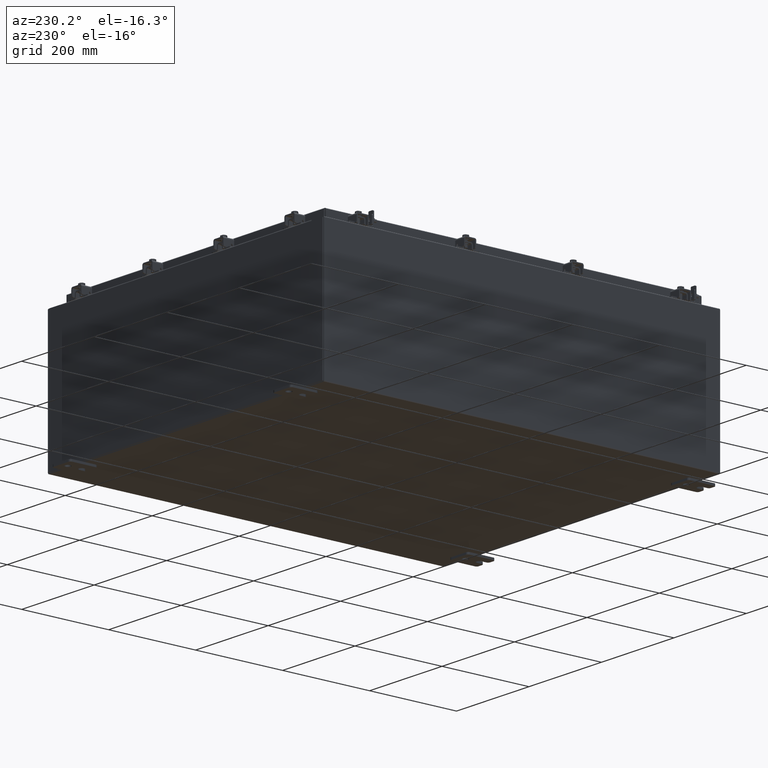
[diagram: clean part render]
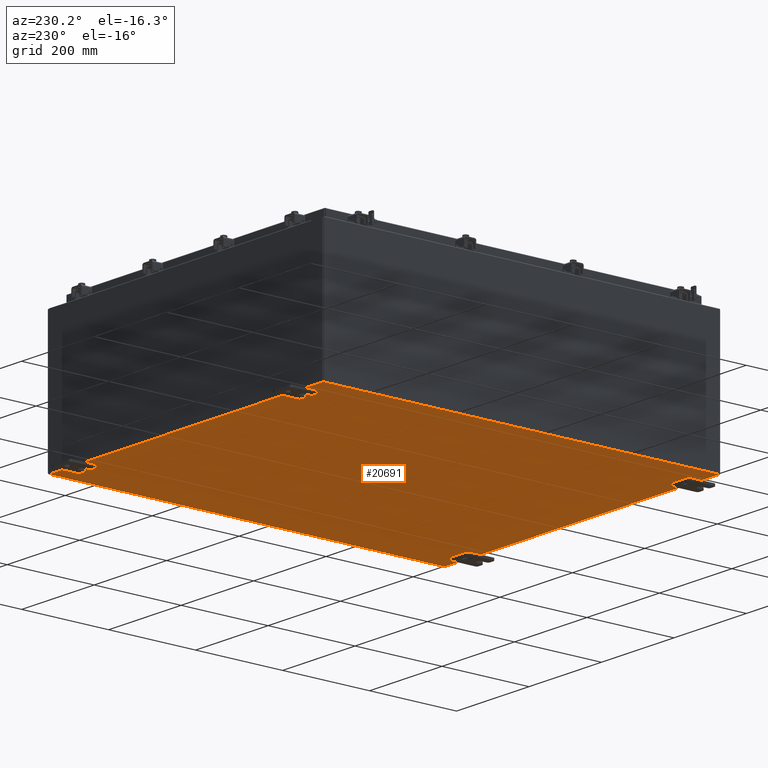
[diagram: same view with one face highlighted and labeled with its STEP entity id]
A machine part, auxiliary view. The second image highlights one B-rep face of the part: STEP entity #20691.
In plain terms, the highlighted planar face has unit normal (0, 0, -1).
Its self-contained STEP definition (entity closure, byte-faithful):
#2511 = AXIS2_PLACEMENT_3D ( 'NONE', #8818, #22068, #10707 ) ;
#2927 = DIRECTION ( 'NONE',  ( -1.000000000000000000, -0.0000000000000000000, -0.0000000000000000000 ) ) ;
#3367 = EDGE_CURVE ( 'NONE', #21005, #15363, #22690, .T. ) ;
#4038 = CARTESIAN_POINT ( 'NONE',  ( -14.91230000000000200, 17.92530000000000000, -0.07470000000000015500 ) ) ;
#4094 = CARTESIAN_POINT ( 'NONE',  ( 14.91229999999999800, -17.92530000000000000, -0.07470000000000015500 ) ) ;
#5094 = VECTOR ( 'NONE', #19161, 39.37007874015748100 ) ;
#5933 = EDGE_LOOP ( 'NONE', ( #7225, #5971, #12307, #15618 ) ) ;
#5971 = ORIENTED_EDGE ( 'NONE', *, *, #6340, .T. ) ;
#6340 = EDGE_CURVE ( 'NONE', #7762, #14719, #13961, .T. ) ;
#7225 = ORIENTED_EDGE ( 'NONE', *, *, #20119, .F. ) ;
#7290 = DIRECTION ( 'NONE',  ( 1.000000000000000000, 0.0000000000000000000, 0.0000000000000000000 ) ) ;
#7407 = FACE_OUTER_BOUND ( 'NONE', #5933, .T. ) ;
#7762 = VERTEX_POINT ( 'NONE', #19705 ) ;
#8818 = CARTESIAN_POINT ( 'NONE',  ( 0.0000000000000000000, 0.0000000000000000000, -0.07470000000000015500 ) ) ;
#8840 = VECTOR ( 'NONE', #2927, 39.37007874015748100 ) ;
#10707 = DIRECTION ( 'NONE',  ( -1.000000000000000000, 0.0000000000000000000, -0.0000000000000000000 ) ) ;
#11517 = CARTESIAN_POINT ( 'NONE',  ( 14.91229999999999800, 17.92530000000000000, -0.07470000000000234800 ) ) ;
#12307 = ORIENTED_EDGE ( 'NONE', *, *, #17152, .F. ) ;
#12579 = VECTOR ( 'NONE', #14347, 39.37007874015748100 ) ;
#13018 = LINE ( 'NONE', #16636, #22520 ) ;
#13961 = LINE ( 'NONE', #22932, #5094 ) ;
#14347 = DIRECTION ( 'NONE',  ( -0.0000000000000000000, -1.000000000000000000, 8.208677865577646300E-017 ) ) ;
#14719 = VERTEX_POINT ( 'NONE', #4038 ) ;
#15363 = VERTEX_POINT ( 'NONE', #4094 ) ;
#15618 = ORIENTED_EDGE ( 'NONE', *, *, #3367, .T. ) ;
#16175 = CARTESIAN_POINT ( 'NONE',  ( -15.00000000000000400, 17.92530000000000000, -0.07470000000000015500 ) ) ;
#16252 = CARTESIAN_POINT ( 'NONE',  ( 14.91229999999999800, 17.92530000000000000, -0.07470000000000234800 ) ) ;
#16636 = CARTESIAN_POINT ( 'NONE',  ( -15.00000000000000400, -17.92530000000000000, -0.07470000000000015500 ) ) ;
#17152 = EDGE_CURVE ( 'NONE', #21005, #14719, #23956, .T. ) ;
#19161 = DIRECTION ( 'NONE',  ( -0.0000000000000000000, 1.000000000000000000, -0.0000000000000000000 ) ) ;
#19705 = CARTESIAN_POINT ( 'NONE',  ( -14.91230000000000200, -17.92530000000000000, -0.07470000000000015500 ) ) ;
#20119 = EDGE_CURVE ( 'NONE', #7762, #15363, #13018, .T. ) ;
#20177 = PLANE ( 'NONE',  #2511 ) ;
#20691 = ADVANCED_FACE ( 'NONE', ( #7407 ), #20177, .T. ) ;
#21005 = VERTEX_POINT ( 'NONE', #11517 ) ;
#22068 = DIRECTION ( 'NONE',  ( 0.0000000000000000000, 0.0000000000000000000, -1.000000000000000000 ) ) ;
#22520 = VECTOR ( 'NONE', #7290, 39.37007874015748100 ) ;
#22690 = LINE ( 'NONE', #16252, #12579 ) ;
#22932 = CARTESIAN_POINT ( 'NONE',  ( -14.91230000000000200, -17.92530000000000000, -0.07470000000000015500 ) ) ;
#23956 = LINE ( 'NONE', #16175, #8840 ) ;